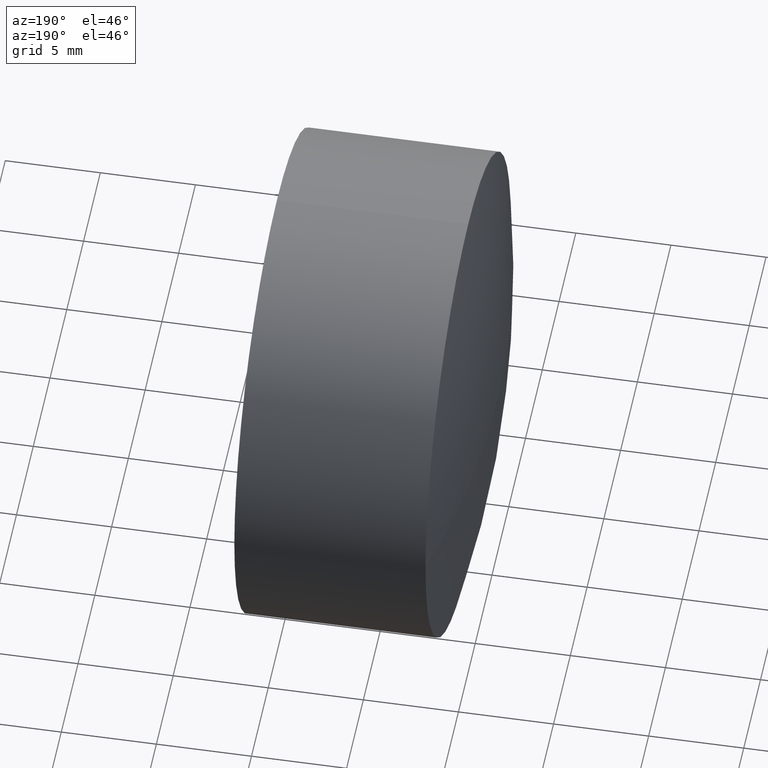
[diagram: clean part render]
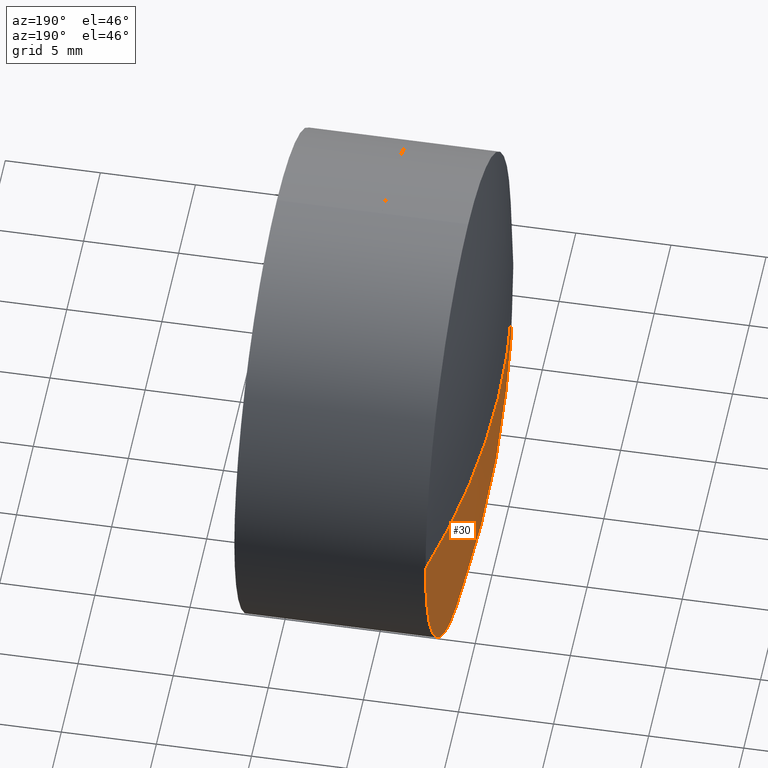
[diagram: same view with one face highlighted and labeled with its STEP entity id]
A machine part, auxiliary view. The second image highlights one B-rep face of the part: STEP entity #30.
In plain terms, the highlighted spherical surface has radius 51.98 mm.
Its self-contained STEP definition (entity closure, byte-faithful):
#7 = CARTESIAN_POINT ( 'NONE',  ( -13.75656378347417785, 0.04597092655642146669, 12.69999999999999929 ) ) ;
#30 = ADVANCED_FACE ( 'NONE', ( #259 ), #398, .T. ) ;
#48 = EDGE_LOOP ( 'NONE', ( #164, #128, #333, #326 ) ) ;
#60 = CARTESIAN_POINT ( 'NONE',  ( -13.75656378347417963, 12.74597092655643138, 25.39999999999999858 ) ) ;
#106 = EDGE_CURVE ( 'NONE', #387, #290, #130, .T. ) ;
#107 = DIRECTION ( 'NONE',  ( -1.000000000000000000, -0.000000000000000000, -0.000000000000000000 ) ) ;
#111 = CIRCLE ( 'NONE', #359, 12.69999999999999574 ) ;
#115 = VERTEX_POINT ( 'NONE', #60 ) ;
#128 = ORIENTED_EDGE ( 'NONE', *, *, #106, .T. ) ;
#130 = CIRCLE ( 'NONE', #397, 12.69999999999999574 ) ;
#158 = CIRCLE ( 'NONE', #347, 51.97999999999999687 ) ;
#164 = ORIENTED_EDGE ( 'NONE', *, *, #351, .T. ) ;
#176 = DIRECTION ( 'NONE',  ( -0.000000000000000000, 0.000000000000000000, 1.000000000000000000 ) ) ;
#178 = CIRCLE ( 'NONE', #369, 51.97999999999999687 ) ;
#191 = AXIS2_PLACEMENT_3D ( 'NONE', #261, #395, #265 ) ;
#195 = EDGE_CURVE ( 'NONE', #290, #363, #178, .T. ) ;
#220 = CARTESIAN_POINT ( 'NONE',  ( -15.33189733283689371, 0.04597092655642309039, 25.39999999999999858 ) ) ;
#229 = CARTESIAN_POINT ( 'NONE',  ( -13.75656378347417785, 0.04597092655641990544, 25.39999999999999858 ) ) ;
#241 = EDGE_CURVE ( 'NONE', #115, #363, #158, .T. ) ;
#251 = CARTESIAN_POINT ( 'NONE',  ( 36.64810266716310139, 0.04597092655641990544, 25.39999999999999858 ) ) ;
#259 = FACE_OUTER_BOUND ( 'NONE', #48, .T. ) ;
#261 = CARTESIAN_POINT ( 'NONE',  ( 36.64810266716310139, 0.04597092655641990544, 25.39999999999999858 ) ) ;
#265 = DIRECTION ( 'NONE',  ( 0.000000000000000000, 1.000000000000000000, 0.000000000000000000 ) ) ;
#276 = CARTESIAN_POINT ( 'NONE',  ( -13.75656378347417963, -12.65402907344359207, 25.39999999999999858 ) ) ;
#290 = VERTEX_POINT ( 'NONE', #276 ) ;
#307 = CARTESIAN_POINT ( 'NONE',  ( -13.75656378347417785, 0.04597092655641990544, 25.39999999999999858 ) ) ;
#326 = ORIENTED_EDGE ( 'NONE', *, *, #241, .F. ) ;
#330 = DIRECTION ( 'NONE',  ( -1.000000000000000000, -0.000000000000000000, -0.000000000000000000 ) ) ;
#333 = ORIENTED_EDGE ( 'NONE', *, *, #195, .T. ) ;
#342 = DIRECTION ( 'NONE',  ( 0.000000000000000000, 1.000000000000000000, 1.334916103098735929E-16 ) ) ;
#347 = AXIS2_PLACEMENT_3D ( 'NONE', #251, #176, #348 ) ;
#348 = DIRECTION ( 'NONE',  ( 1.000000000000000000, 0.000000000000000000, 0.000000000000000000 ) ) ;
#351 = EDGE_CURVE ( 'NONE', #115, #387, #111, .T. ) ;
#359 = AXIS2_PLACEMENT_3D ( 'NONE', #307, #107, #378 ) ;
#363 = VERTEX_POINT ( 'NONE', #220 ) ;
#369 = AXIS2_PLACEMENT_3D ( 'NONE', #413, #375, #342 ) ;
#375 = DIRECTION ( 'NONE',  ( 0.000000000000000000, 1.224646799147353207E-16, -1.000000000000000000 ) ) ;
#378 = DIRECTION ( 'NONE',  ( 0.000000000000000000, 0.000000000000000000, 1.000000000000000000 ) ) ;
#387 = VERTEX_POINT ( 'NONE', #7 ) ;
#395 = DIRECTION ( 'NONE',  ( -0.000000000000000000, 0.000000000000000000, -1.000000000000000000 ) ) ;
#396 = DIRECTION ( 'NONE',  ( 0.000000000000000000, 0.000000000000000000, 1.000000000000000000 ) ) ;
#397 = AXIS2_PLACEMENT_3D ( 'NONE', #229, #330, #396 ) ;
#398 = SPHERICAL_SURFACE ( 'NONE', #191, 51.97999999999999687 ) ;
#413 = CARTESIAN_POINT ( 'NONE',  ( 36.64810266716310139, 0.04597092655641990544, 25.39999999999999858 ) ) ;